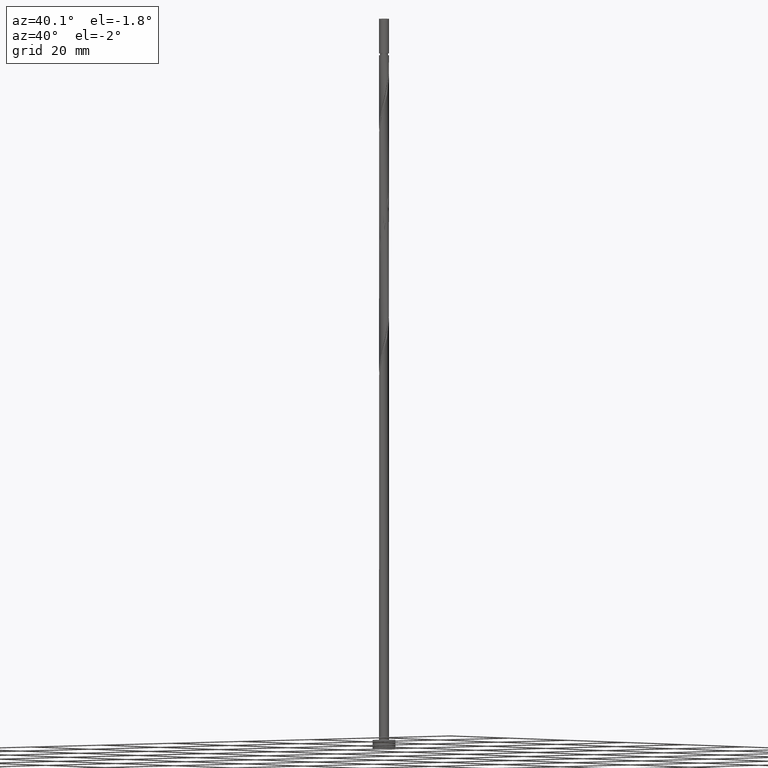
[diagram: clean part render]
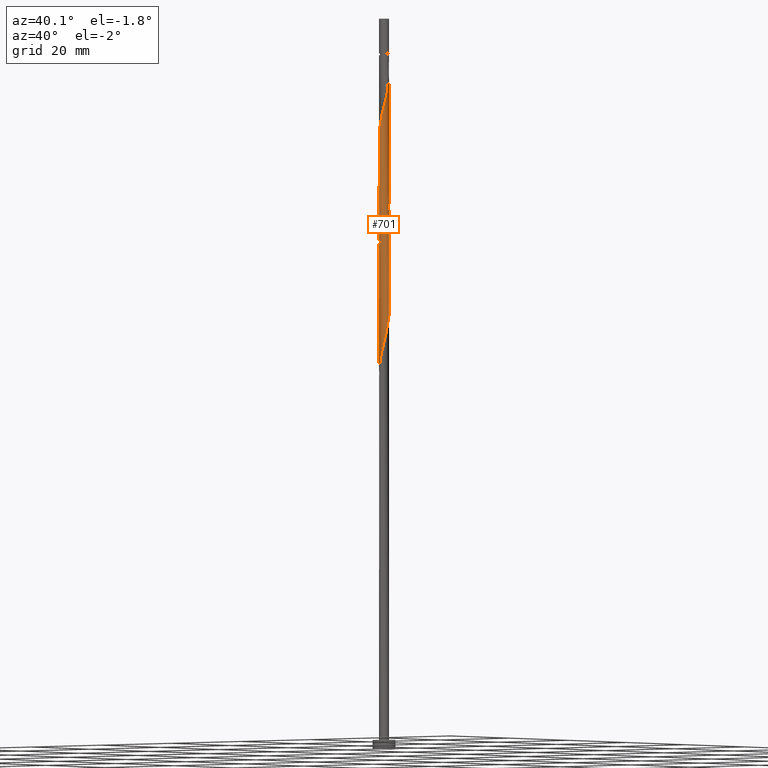
[diagram: same view with one face highlighted and labeled with its STEP entity id]
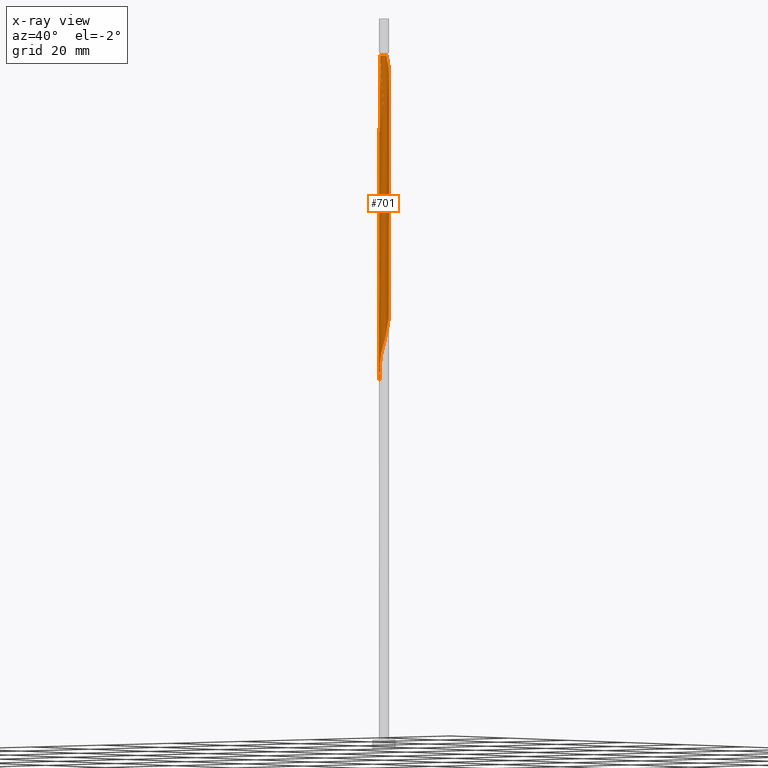
[diagram: x-ray of the same camera — body ghosted, the highlighted face saturated]
A machine part, auxiliary view. The second image highlights one B-rep face of the part: STEP entity #701.
The next image is the same camera in x-ray: the body ghosted, the highlighted face saturated — about 0% of this face is hidden behind the body in this view.
In plain terms, the highlighted cylindrical surface (bore or boss wall) has radius 1.1 mm, axis along (-0, -0, -1).
Its self-contained STEP definition (entity closure, byte-faithful):
#20 = CARTESIAN_POINT ( 'NONE',  ( -0.9826650609611464748, 0.5190209411318559285, 130.7933270120532825 ) ) ;
#30 = DIRECTION ( 'NONE',  ( -0.000000000000000000, -0.000000000000000000, -1.000000000000000000 ) ) ;
#35 = EDGE_CURVE ( 'NONE', #1423, #1343, #1280, .T. ) ;
#45 = CARTESIAN_POINT ( 'NONE',  ( -1.100000000000000089, 0.000000000000000000, 160.0000000000000000 ) ) ;
#60 = CARTESIAN_POINT ( 'NONE',  ( 0.2512589077020582207, -1.082535135996767428, 87.15696337568965646 ) ) ;
#61 = CARTESIAN_POINT ( 'NONE',  ( 1.035875189584575473, 0.3700845735816656323, 145.9448421635684667 ) ) ;
#63 = CARTESIAN_POINT ( 'NONE',  ( 1.100000000000001865, 1.435854787535623950E-15, 119.5215693701420747 ) ) ;
#66 = CARTESIAN_POINT ( 'NONE',  ( 0.8896500927852526441, -0.6469333137249889676, 90.18726640599271605 ) ) ;
#67 = CARTESIAN_POINT ( 'NONE',  ( -0.8896500927852526441, -0.6469333137249891896, 133.8236300423563705 ) ) ;
#71 = CARTESIAN_POINT ( 'NONE',  ( -1.071516489199091815, -0.2487014543070792394, 107.1569633756896707 ) ) ;
#79 = CARTESIAN_POINT ( 'NONE',  ( -0.9580452458864876508, -0.5405083781351617267, 108.3690845878108604 ) ) ;
#86 = CARTESIAN_POINT ( 'NONE',  ( 0.8803318733882242730, -0.6782544891587160008, 141.7024179211442458 ) ) ;
#88 = CARTESIAN_POINT ( 'NONE',  ( 1.035875189584575917, -0.3700845735816660209, 91.39938761811390577 ) ) ;
#92 = CARTESIAN_POINT ( 'NONE',  ( 0.9580452458864876508, -0.5405083781351621708, 142.3084785272048123 ) ) ;
#107 = EDGE_CURVE ( 'NONE', #591, #402, #452, .T. ) ;
#123 = EDGE_LOOP ( 'NONE', ( #1178, #1403, #1158, #1291, #810, #1100, #1234, #1437 ) ) ;
#132 = CARTESIAN_POINT ( 'NONE',  ( 0.6535858755450255630, 0.8987985662289482702, 123.5205997393260162 ) ) ;
#143 = CARTESIAN_POINT ( 'NONE',  ( -1.100000000000002087, -0.1259818201236328483, 80.00752932311335996 ) ) ;
#144 = CARTESIAN_POINT ( 'NONE',  ( -0.8896500927852526441, 0.6469333137249889676, 130.1872664059927160 ) ) ;
#147 = CARTESIAN_POINT ( 'NONE',  ( 1.089085318208004693, -0.2211482060314762799, 118.6721148908411720 ) ) ;
#151 = CARTESIAN_POINT ( 'NONE',  ( 0.06390423523687577267, 1.109472671175797842, 125.9448421635684667 ) ) ;
#169 = CYLINDRICAL_SURFACE ( 'NONE', #1401, 1.100000000000000089 ) ;
#171 = CARTESIAN_POINT ( 'NONE',  ( 0.7966351246093590355, -0.7748456863181223397, 89.58120579993210697 ) ) ;
#172 = CARTESIAN_POINT ( 'NONE',  ( 1.089085318208004471, 0.2211482060314758358, 145.3387815575078719 ) ) ;
#179 = CARTESIAN_POINT ( 'NONE',  ( -0.6535858755450254520, -0.8987985662289483813, 83.52059973932603043 ) ) ;
#180 = CARTESIAN_POINT ( 'NONE',  ( 0.6713508364212954493, 0.8713713642508748025, 148.3690845878108746 ) ) ;
#182 = CARTESIAN_POINT ( 'NONE',  ( 1.071516489199092037, 0.2487014543070789896, 93.82363004235635628 ) ) ;
#188 = CARTESIAN_POINT ( 'NONE',  ( -0.09367733623259114073, -1.096003903586282746, 137.4599936787199397 ) ) ;
#190 = CARTESIAN_POINT ( 'NONE',  ( -0.3738902370900387129, -1.046527328824204961, 111.3993876181138631 ) ) ;
#199 = CARTESIAN_POINT ( 'NONE',  ( -0.5137380563175319992, -0.9726629475265765601, 110.7933270120533109 ) ) ;
#200 = EDGE_CURVE ( 'NONE', #547, #402, #704, .T. ) ;
#209 = VERTEX_POINT ( 'NONE', #484 ) ;
#223 = LINE ( 'NONE', #1407, #1375 ) ;
#230 = CARTESIAN_POINT ( 'NONE',  ( -1.100000000000001643, 1.398462735776883580E-15, 79.52156937014208893 ) ) ;
#250 = CARTESIAN_POINT ( 'NONE',  ( -0.7966351246093584804, 0.7748456863181226728, 129.5812057999320643 ) ) ;
#257 = CARTESIAN_POINT ( 'NONE',  ( 0.9580452458864876508, 0.5405083781351621708, 121.7024179211442316 ) ) ;
#266 = CARTESIAN_POINT ( 'NONE',  ( -0.3986627279676452917, 1.025216089090197569, 127.7630239817502940 ) ) ;
#276 = CARTESIAN_POINT ( 'NONE',  ( -0.3738902370900387129, -1.046527328824204961, 84.73272095144724858 ) ) ;
#277 = CARTESIAN_POINT ( 'NONE',  ( 0.7669588744666246960, 0.7885265276938322465, 122.9145391332654356 ) ) ;
#308 = CARTESIAN_POINT ( 'NONE',  ( 0.9826650609611466969, 0.5190209411318552624, 146.5509027696290048 ) ) ;
#310 = CARTESIAN_POINT ( 'NONE',  ( 0.6535858755450255630, 0.8987985662289482702, 96.85393307265935903 ) ) ;
#318 = CARTESIAN_POINT ( 'NONE',  ( -0.6713508364212955604, -0.8713713642508745805, 135.0357512544775886 ) ) ;
#321 = CARTESIAN_POINT ( 'NONE',  ( -0.7669588744666252511, -0.7885265276938319134, 109.5812057999321070 ) ) ;
#328 = CARTESIAN_POINT ( 'NONE',  ( 0.9580452458864876508, 0.5405083781351621708, 95.03575125447753180 ) ) ;
#336 = CARTESIAN_POINT ( 'NONE',  ( 0.8803318733882239400, 0.6782544891587160008, 95.64181186053814088 ) ) ;
#340 = DIRECTION ( 'NONE',  ( -0.000000000000000000, -0.000000000000000000, -1.000000000000000000 ) ) ;
#372 = AXIS2_PLACEMENT_3D ( 'NONE', #624, #30, #516 ) ;
#382 = CARTESIAN_POINT ( 'NONE',  ( -0.09367733623259116849, 1.096003903586282524, 126.5509027696290474 ) ) ;
#393 = VERTEX_POINT ( 'NONE', #230 ) ;
#400 = CARTESIAN_POINT ( 'NONE',  ( -1.071516489199091815, -0.2487014543070792394, 80.49029670902298506 ) ) ;
#402 = VERTEX_POINT ( 'NONE', #713 ) ;
#403 = CARTESIAN_POINT ( 'NONE',  ( 0.7966351246093590355, -0.7748456863181223397, 116.2478724665987500 ) ) ;
#407 = CARTESIAN_POINT ( 'NONE',  ( -1.099999999999993427, 0.000000000000000000, 152.0054482241745291 ) ) ;
#435 = CARTESIAN_POINT ( 'NONE',  ( -1.089085318208004471, -0.2211482060314759746, 132.0054482241745291 ) ) ;
#437 = CARTESIAN_POINT ( 'NONE',  ( -1.089085318208004693, 0.2211482060314761411, 105.3387815575078719 ) ) ;
#444 = CARTESIAN_POINT ( 'NONE',  ( -0.3986627279676452917, 1.025216089090197569, 101.0963573150836083 ) ) ;
#450 = CARTESIAN_POINT ( 'NONE',  ( 0.2188972361634575203, 1.078000000000001402, 98.67211489084120046 ) ) ;
#452 = CIRCLE ( 'NONE', #372, 1.099999999999993427 ) ;
#484 = CARTESIAN_POINT ( 'NONE',  ( 1.100000000000000089, 1.347111479062088503E-16, 152.0054482241745291 ) ) ;
#492 = EDGE_CURVE ( 'NONE', #547, #393, #223, .T. ) ;
#497 = CARTESIAN_POINT ( 'NONE',  ( -1.098179839110718481, 0.06325378226446283503, 132.6115088302351523 ) ) ;
#505 = CARTESIAN_POINT ( 'NONE',  ( 0.8803318733882239400, 0.6782544891587160008, 122.3084785272048407 ) ) ;
#516 = DIRECTION ( 'NONE',  ( -1.000000000000000000, 0.000000000000000000, 0.000000000000000000 ) ) ;
#537 = CARTESIAN_POINT ( 'NONE',  ( 0.2188972361634575203, 1.078000000000001402, 125.3387815575078292 ) ) ;
#544 = CARTESIAN_POINT ( 'NONE',  ( -0.2188972361634573816, -1.078000000000001402, 85.33878155750787187 ) ) ;
#545 = CARTESIAN_POINT ( 'NONE',  ( 0.5137380563175318882, -0.9726629475265768932, 139.8842361029624044 ) ) ;
#547 = VERTEX_POINT ( 'NONE', #1064 ) ;
#554 = CARTESIAN_POINT ( 'NONE',  ( 0.6713508364212955604, -0.8713713642508748025, 88.97514519387149790 ) ) ;
#555 = CARTESIAN_POINT ( 'NONE',  ( 0.2512589077020579986, 1.082535135996767428, 150.1872664059927160 ) ) ;
#557 = CARTESIAN_POINT ( 'NONE',  ( -0.09367733623259116849, 1.096003903586282524, 99.88423610296240440 ) ) ;
#565 = CARTESIAN_POINT ( 'NONE',  ( -1.098179839110718481, 0.06325378226446283503, 105.9448421635684809 ) ) ;
#569 = CARTESIAN_POINT ( 'NONE',  ( -0.06390423523687606411, -1.109472671175797842, 112.6115088302350813 ) ) ;
#575 = CARTESIAN_POINT ( 'NONE',  ( 0.3738902370900385463, -1.046527328824204961, 139.2781754969017811 ) ) ;
#591 = VERTEX_POINT ( 'NONE', #407 ) ;
#609 = CARTESIAN_POINT ( 'NONE',  ( 1.035758618384751806, 0.4027622671116073971, 121.0963573150836083 ) ) ;
#624 = CARTESIAN_POINT ( 'NONE',  ( 0.000000000000000000, 0.000000000000000000, 152.0054482241745291 ) ) ;
#628 = VECTOR ( 'NONE', #637, 1000.000000000000000 ) ;
#637 = DIRECTION ( 'NONE',  ( -0.000000000000000000, -0.000000000000000000, -1.000000000000000000 ) ) ;
#651 = CARTESIAN_POINT ( 'NONE',  ( 1.071516489199091815, -0.2487014543070792394, 143.5205997393260304 ) ) ;
#661 = CARTESIAN_POINT ( 'NONE',  ( 0.09367733623259082154, -1.096003903586282524, 86.55090276962904738 ) ) ;
#663 = CARTESIAN_POINT ( 'NONE',  ( 0.5460665482332321963, 0.9678970421836270432, 148.9751451938714979 ) ) ;
#668 = CARTESIAN_POINT ( 'NONE',  ( 0.3986627279676452917, -1.025216089090197569, 114.4296906484169511 ) ) ;
#676 = CARTESIAN_POINT ( 'NONE',  ( 0.6713508364212955604, -0.8713713642508748025, 115.6418118605381551 ) ) ;
#680 = CARTESIAN_POINT ( 'NONE',  ( -1.035875189584575473, -0.3700845735816658544, 132.6115088302351808 ) ) ;
#683 = CARTESIAN_POINT ( 'NONE',  ( -0.9826650609611464748, 0.5190209411318559285, 104.1266603453866253 ) ) ;
#690 = CARTESIAN_POINT ( 'NONE',  ( -1.100000000000001643, -0.03165307917620744510, 131.2780917495918800 ) ) ;
#701 = ADVANCED_FACE ( 'NONE', ( #1393 ), #169, .T. ) ;
#704 =( BOUNDED_CURVE ( )  B_SPLINE_CURVE ( 2, ( #1242, #690, #1387, #435, #680, #767, #67, #1379, #318, #794, #1121, #1263, #188, #1152, #1369, #575, #545, #1031, #1144, #86, #92, #787, #651, #881, #1361, #172, #61, #308, #779, #1253, #180, #663, #1127, #555, #1010, #1499, #888 ),
 .UNSPECIFIED., .F., .T. ) 
 B_SPLINE_CURVE_WITH_KNOTS ( ( 3, 2, 2, 2, 2, 2, 2, 2, 2, 2, 2, 2, 2, 2, 2, 2, 2, 2, 3 ),
 ( 0.5545252162417515507, 0.5568181818181818787, 0.5681818181818181213, 0.5795454545454545858, 0.5909090909090908283, 0.6022727272727272929, 0.6136363636363636465, 0.6250000000000000000, 0.6363636363636364646, 0.6477272727272727071, 0.6590909090909091717, 0.6704545454545455252, 0.6818181818181819898, 0.6931818181818182323, 0.7045454545454546968, 0.7159090909090909394, 0.7272727272727274039, 0.7386363636363637575, 0.7500000000000001110 ),
 .UNSPECIFIED. ) 
 CURVE ( )  GEOMETRIC_REPRESENTATION_ITEM ( )  RATIONAL_B_SPLINE_CURVE ( ( 0.9061101570135798866, 0.9072237824201621059, 0.9090909090909394807, 0.8998376744372417191, 0.9090909090909394807, 0.8998376744372417191, 0.9090909090909394807, 0.8998376744372417191, 0.9090909090909394807, 0.8998376744372417191, 0.9090909090909394807, 0.8998376744372417191, 0.9090909090909394807, 0.8998376744372417191, 0.9090909090909394807, 0.8998376744372417191, 0.9090909090909394807, 0.8998376744372417191, 0.9090909090909394807, 0.8998376744372417191, 0.9090909090909394807, 0.8998376744372417191, 0.9090909090909394807, 0.8998376744372417191, 0.9090909090909394807, 0.8998376744372417191, 0.9090909090909394807, 0.8998376744372417191, 0.9090909090909394807, 0.8998376744372417191, 0.9090909090909394807, 0.8998376744372417191, 0.9090909090909394807, 0.8998376744372417191, 0.9090909090909394807, 0.8998376744372416081, 0.9090909090909395918 ) ) 
 REPRESENTATION_ITEM ( '' )  );
#713 = CARTESIAN_POINT ( 'NONE',  ( -0.2188972361634685115, 1.078000000000313596, 152.0054482241743870 ) ) ;
#726 = CARTESIAN_POINT ( 'NONE',  ( 0.5137380563175322212, 0.9726629475265765601, 124.1266603453866395 ) ) ;
#729 = CARTESIAN_POINT ( 'NONE',  ( 1.100000000000002087, 0.1259818201236340418, 120.0075293231133884 ) ) ;
#739 = CARTESIAN_POINT ( 'NONE',  ( -1.100000000000001643, 1.398462735776883580E-15, 79.52156937014208893 ) ) ;
#759 = CARTESIAN_POINT ( 'NONE',  ( -1.100000000000002087, 0.03165307917620340666, 132.7328046987572350 ) ) ;
#767 = CARTESIAN_POINT ( 'NONE',  ( -0.9826650609611464748, -0.5190209411318557065, 133.2175694362957188 ) ) ;
#779 = CARTESIAN_POINT ( 'NONE',  ( 0.8896500927852530882, 0.6469333137249887455, 147.1569633756897133 ) ) ;
#780 = CARTESIAN_POINT ( 'NONE',  ( -0.6535858755450254520, -0.8987985662289483813, 110.1872664059927018 ) ) ;
#787 = CARTESIAN_POINT ( 'NONE',  ( 1.035758618384751584, -0.4027622671116077857, 142.9145391332654071 ) ) ;
#788 = CARTESIAN_POINT ( 'NONE',  ( 0.5460665482332321963, -0.9678970421836271543, 115.0357512544775318 ) ) ;
#794 = CARTESIAN_POINT ( 'NONE',  ( -0.5460665482332326404, -0.9678970421836268212, 135.6418118605381551 ) ) ;
#796 = CARTESIAN_POINT ( 'NONE',  ( 1.035758618384751806, 0.4027622671116073971, 94.42969064841693694 ) ) ;
#810 = ORIENTED_EDGE ( 'NONE', *, *, #1057, .F. ) ;
#835 = CARTESIAN_POINT ( 'NONE',  ( -1.100000000000001643, -1.383505915073387403E-16, 132.8549027034754317 ) ) ;
#846 = LINE ( 'NONE', #45, #990 ) ;
#869 = DIRECTION ( 'NONE',  ( -0.000000000000000000, -0.000000000000000000, -1.000000000000000000 ) ) ;
#880 = CARTESIAN_POINT ( 'NONE',  ( 0.000000000000000000, 0.000000000000000000, 160.0000000000000000 ) ) ;
#881 = CARTESIAN_POINT ( 'NONE',  ( 1.107274360013432490, -0.09464064150255065144, 144.1266603453866253 ) ) ;
#884 = CARTESIAN_POINT ( 'NONE',  ( 0.2512589077020582207, -1.082535135996767428, 113.8236300423563421 ) ) ;
#887 = CARTESIAN_POINT ( 'NONE',  ( 0.3986627279676452917, -1.025216089090197569, 87.76302398175030817 ) ) ;
#888 = CARTESIAN_POINT ( 'NONE',  ( -0.2188972361634685115, 1.078000000000313596, 152.0054482241743870 ) ) ;
#891 = CARTESIAN_POINT ( 'NONE',  ( 1.089085318208004693, -0.2211482060314762799, 92.00544822417450064 ) ) ;
#897 = CARTESIAN_POINT ( 'NONE',  ( -0.2512589077020579986, 1.082535135996767428, 100.4902967090229851 ) ) ;
#902 = EDGE_CURVE ( 'NONE', #591, #1423, #846, .T. ) ;
#904 = CARTESIAN_POINT ( 'NONE',  ( -1.035875189584575917, 0.3700845735816657989, 104.7327209514472486 ) ) ;
#949 = CARTESIAN_POINT ( 'NONE',  ( -0.2512589077020579986, 1.082535135996767428, 127.1569633756896565 ) ) ;
#960 = CARTESIAN_POINT ( 'NONE',  ( 1.100000000000001421, -0.03165307917620591160, 119.3994713654238780 ) ) ;
#961 = LINE ( 'NONE', #1075, #628 ) ;
#972 = CARTESIAN_POINT ( 'NONE',  ( 0.9826650609611464748, -0.5190209411318557065, 117.4599936787199539 ) ) ;
#981 = CARTESIAN_POINT ( 'NONE',  ( -1.035758618384751584, -0.4027622671116081188, 81.09635731508359413 ) ) ;
#990 = VECTOR ( 'NONE', #1329, 1000.000000000000000 ) ;
#1000 =( BOUNDED_CURVE ( )  B_SPLINE_CURVE ( 2, ( #63, #960, #1214, #147, #1090, #972, #1462, #403, #676, #788, #668, #884, #1255, #569, #1019, #190, #199, #780, #321, #1138, #79, #1370, #71, #1510, #565, #437, #904, #683, #1025, #1517, #1264, #1130, #444, #897, #557, #1012, #450, #1396, #1389, #310, #1272, #336, #328, #796, #182, #1146, #1501, #891, #88, #1380, #66, #171, #554, #1126, #887, #60, #661, #1498, #544, #276, #1360, #179, #1368, #1008, #1377, #981, #400, #143, #739 ),
 .UNSPECIFIED., .F., .T. ) 
 B_SPLINE_CURVE_WITH_KNOTS ( ( 3, 2, 2, 2, 2, 2, 2, 2, 2, 2, 2, 2, 2, 2, 2, 2, 2, 2, 2, 2, 2, 2, 2, 2, 2, 2, 2, 2, 2, 2, 2, 2, 2, 2, 3 ),
 ( 0.5545252162417513286, 0.5568181818181817677, 0.5681818181818182323, 0.5795454545454545858, 0.5909090909090909394, 0.6022727272727272929, 0.6136363636363636465, 0.6250000000000000000, 0.6363636363636363535, 0.6477272727272727071, 0.6590909090909090606, 0.6704545454545454142, 0.6818181818181817677, 0.6931818181818182323, 0.7045454545454545858, 0.7159090909090909394, 0.7272727272727272929, 0.7386363636363636465, 0.7500000000000000000, 0.7613636363636363535, 0.7727272727272727071, 0.7840909090909090606, 0.7954545454545454142, 0.8068181818181817677, 0.8181818181818182323, 0.8295454545454545858, 0.8409090909090909394, 0.8522727272727272929, 0.8636363636363636465, 0.8750000000000000000, 0.8863636363636363535, 0.8977272727272727071, 0.9090909090909090606, 0.9204545454545454142, 0.9295252162417514397 ),
 .UNSPECIFIED. ) 
 CURVE ( )  GEOMETRIC_REPRESENTATION_ITEM ( )  RATIONAL_B_SPLINE_CURVE ( ( 0.9061101570135806638, 0.9072237824201627721, 0.9090909090909403689, 0.8998376744372424962, 0.9090909090909403689, 0.8998376744372424962, 0.9090909090909403689, 0.8998376744372424962, 0.9090909090909403689, 0.8998376744372424962, 0.9090909090909403689, 0.8998376744372424962, 0.9090909090909403689, 0.8998376744372424962, 0.9090909090909403689, 0.8998376744372424962, 0.9090909090909403689, 0.8998376744372424962, 0.9090909090909403689, 0.8998376744372424962, 0.9090909090909403689, 0.8998376744372424962, 0.9090909090909403689, 0.8998376744372424962, 0.9090909090909403689, 0.8998376744372424962, 0.9090909090909403689, 0.8998376744372424962, 0.9090909090909403689, 0.8998376744372424962, 0.9090909090909403689, 0.8998376744372424962, 0.9090909090909403689, 0.8998376744372424962, 0.9090909090909403689, 0.8998376744372424962, 0.9090909090909403689, 0.8998376744372424962, 0.9090909090909403689, 0.8998376744372424962, 0.9090909090909403689, 0.8998376744372424962, 0.9090909090909403689, 0.8998376744372424962, 0.9090909090909403689, 0.8998376744372424962, 0.9090909090909403689, 0.8998376744372424962, 0.9090909090909403689, 0.8998376744372424962, 0.9090909090909403689, 0.8998376744372424962, 0.9090909090909403689, 0.8998376744372424962, 0.9090909090909403689, 0.8998376744372424962, 0.9090909090909403689, 0.8998376744372424962, 0.9090909090909403689, 0.8998376744372424962, 0.9090909090909403689, 0.8998376744372424962, 0.9090909090909403689, 0.8998376744372424962, 0.9090909090909403689, 0.8998376744372424962, 0.9090909090909403689, 0.9017048011080199821, 0.9061101570135807748 ) ) 
 REPRESENTATION_ITEM ( '' )  );
#1008 = CARTESIAN_POINT ( 'NONE',  ( -0.8803318733882242730, -0.6782544891587156677, 82.30847852720481228 ) ) ;
#1010 = CARTESIAN_POINT ( 'NONE',  ( 0.09367733623259123787, 1.096003903586282746, 150.7933270120533678 ) ) ;
#1012 = CARTESIAN_POINT ( 'NONE',  ( 0.06390423523687577267, 1.109472671175797842, 99.27817549690179533 ) ) ;
#1019 = CARTESIAN_POINT ( 'NONE',  ( -0.2188972361634573816, -1.078000000000001402, 112.0054482241745006 ) ) ;
#1025 = CARTESIAN_POINT ( 'NONE',  ( -0.8896500927852526441, 0.6469333137249889676, 103.5205997393260304 ) ) ;
#1031 = CARTESIAN_POINT ( 'NONE',  ( 0.6535858755450257851, -0.8987985662289482702, 140.4902967090230561 ) ) ;
#1057 = EDGE_CURVE ( 'NONE', #1343, #393, #1000, .T. ) ;
#1064 = CARTESIAN_POINT ( 'NONE',  ( -1.100000000000001643, 2.542659519594335844E-16, 131.1559937448736548 ) ) ;
#1071 = CARTESIAN_POINT ( 'NONE',  ( -1.035875189584575917, 0.3700845735816657989, 131.3993876181139342 ) ) ;
#1075 = CARTESIAN_POINT ( 'NONE',  ( 1.100000000000000089, 1.347111479062088503E-16, 160.0000000000000000 ) ) ;
#1078 = CARTESIAN_POINT ( 'NONE',  ( -1.089085318208004693, 0.2211482060314761411, 132.0054482241745006 ) ) ;
#1090 = CARTESIAN_POINT ( 'NONE',  ( 1.035875189584575917, -0.3700845735816660209, 118.0660542847805914 ) ) ;
#1100 = ORIENTED_EDGE ( 'NONE', *, *, #1366, .F. ) ;
#1108 = CARTESIAN_POINT ( 'NONE',  ( -0.6713508364212955604, 0.8713713642508748025, 128.9751451938714979 ) ) ;
#1121 = CARTESIAN_POINT ( 'NONE',  ( -0.3986627279676455138, -1.025216089090197347, 136.2478724665988352 ) ) ;
#1126 = CARTESIAN_POINT ( 'NONE',  ( 0.5460665482332321963, -0.9678970421836271543, 88.36908458781090303 ) ) ;
#1127 = CARTESIAN_POINT ( 'NONE',  ( 0.3986627279676449587, 1.025216089090197347, 149.5812057999320928 ) ) ;
#1130 = CARTESIAN_POINT ( 'NONE',  ( -0.5460665482332324183, 0.9678970421836269322, 101.7024179211442316 ) ) ;
#1138 = CARTESIAN_POINT ( 'NONE',  ( -0.8803318733882242730, -0.6782544891587156677, 108.9751451938714837 ) ) ;
#1144 = CARTESIAN_POINT ( 'NONE',  ( 0.7669588744666248070, -0.7885265276938320245, 141.0963573150836510 ) ) ;
#1146 = CARTESIAN_POINT ( 'NONE',  ( 1.107274360013432268, 0.09464064150255027674, 93.21756943629571879 ) ) ;
#1152 = CARTESIAN_POINT ( 'NONE',  ( 0.06390423523687575880, -1.109472671175797842, 138.0660542847805914 ) ) ;
#1158 = ORIENTED_EDGE ( 'NONE', *, *, #200, .F. ) ;
#1178 = ORIENTED_EDGE ( 'NONE', *, *, #902, .F. ) ;
#1196 = CARTESIAN_POINT ( 'NONE',  ( 1.100000000000001865, 1.435854787535623752E-15, 119.5215693701420747 ) ) ;
#1200 = CARTESIAN_POINT ( 'NONE',  ( 1.100000000000001865, 1.435854787535623950E-15, 119.5215693701420747 ) ) ;
#1214 = CARTESIAN_POINT ( 'NONE',  ( 1.098179839110718481, -0.06325378226446300156, 119.2781754969017811 ) ) ;
#1234 = ORIENTED_EDGE ( 'NONE', *, *, #1366, .T. ) ;
#1242 = CARTESIAN_POINT ( 'NONE',  ( -1.100000000000001643, 2.542659519594335844E-16, 131.1559937448736548 ) ) ;
#1253 = CARTESIAN_POINT ( 'NONE',  ( 0.7966351246093590355, 0.7748456863181217846, 147.7630239817502229 ) ) ;
#1255 = CARTESIAN_POINT ( 'NONE',  ( 0.09367733623259082154, -1.096003903586282524, 113.2175694362957472 ) ) ;
#1263 = CARTESIAN_POINT ( 'NONE',  ( -0.2512589077020578876, -1.082535135996767428, 136.8539330726593732 ) ) ;
#1264 = CARTESIAN_POINT ( 'NONE',  ( -0.6713508364212955604, 0.8713713642508748025, 102.3084785272048549 ) ) ;
#1272 = CARTESIAN_POINT ( 'NONE',  ( 0.7669588744666246960, 0.7885265276938322465, 96.24787246659877837 ) ) ;
#1280 =( BOUNDED_CURVE ( )  B_SPLINE_CURVE ( 2, ( #835, #759, #497, #1078, #1071, #20, #144, #250, #1108, #1480, #266, #949, #382, #151, #537, #1444, #726, #132, #277, #505, #257, #609, #1320, #729, #1200 ),
 .UNSPECIFIED., .F., .T. ) 
 B_SPLINE_CURVE_WITH_KNOTS ( ( 3, 2, 2, 2, 2, 2, 2, 2, 2, 2, 2, 2, 3 ),
 ( 0.4295252162417512176, 0.4318181818181818232, 0.4431818181818181768, 0.4545454545454545303, 0.4659090909090908839, 0.4772727272727272929, 0.4886363636363636465, 0.5000000000000000000, 0.5113636363636363535, 0.5227272727272727071, 0.5340909090909090606, 0.5454545454545454142, 0.5545252162417513286 ),
 .UNSPECIFIED. ) 
 CURVE ( )  GEOMETRIC_REPRESENTATION_ITEM ( )  RATIONAL_B_SPLINE_CURVE ( ( 0.9061101570135804417, 0.9072237824201626610, 0.9090909090909403689, 0.8998376744372424962, 0.9090909090909403689, 0.8998376744372424962, 0.9090909090909403689, 0.8998376744372424962, 0.9090909090909403689, 0.8998376744372424962, 0.9090909090909403689, 0.8998376744372424962, 0.9090909090909403689, 0.8998376744372424962, 0.9090909090909403689, 0.8998376744372424962, 0.9090909090909403689, 0.8998376744372424962, 0.9090909090909403689, 0.8998376744372424962, 0.9090909090909403689, 0.8998376744372424962, 0.9090909090909403689, 0.9017048011080199821, 0.9061101570135806638 ) ) 
 REPRESENTATION_ITEM ( '' )  );
#1291 = ORIENTED_EDGE ( 'NONE', *, *, #492, .T. ) ;
#1320 = CARTESIAN_POINT ( 'NONE',  ( 1.071516489199092037, 0.2487014543070789896, 120.4902967090229708 ) ) ;
#1329 = DIRECTION ( 'NONE',  ( -0.000000000000000000, -0.000000000000000000, -1.000000000000000000 ) ) ;
#1343 = VERTEX_POINT ( 'NONE', #1196 ) ;
#1360 = CARTESIAN_POINT ( 'NONE',  ( -0.5137380563175319992, -0.9726629475265765601, 84.12666034538663951 ) ) ;
#1361 = CARTESIAN_POINT ( 'NONE',  ( 1.098179839110718259, 0.06325378226446259911, 144.7327209514472770 ) ) ;
#1366 = EDGE_CURVE ( 'NONE', #209, #1343, #961, .T. ) ;
#1367 = DIRECTION ( 'NONE',  ( -1.000000000000000000, 0.000000000000000000, 0.000000000000000000 ) ) ;
#1368 = CARTESIAN_POINT ( 'NONE',  ( -0.7669588744666252511, -0.7885265276938319134, 82.91453913326543557 ) ) ;
#1369 = CARTESIAN_POINT ( 'NONE',  ( 0.2188972361634571040, -1.078000000000001402, 138.6721148908412147 ) ) ;
#1370 = CARTESIAN_POINT ( 'NONE',  ( -1.035758618384751584, -0.4027622671116081188, 107.7630239817502655 ) ) ;
#1375 = VECTOR ( 'NONE', #340, 1000.000000000000000 ) ;
#1377 = CARTESIAN_POINT ( 'NONE',  ( -0.9580452458864876508, -0.5405083781351617267, 81.70241792114423163 ) ) ;
#1379 = CARTESIAN_POINT ( 'NONE',  ( -0.7966351246093585914, -0.7748456863181224508, 134.4296906484169369 ) ) ;
#1380 = CARTESIAN_POINT ( 'NONE',  ( 0.9826650609611464748, -0.5190209411318557065, 90.79332701205331091 ) ) ;
#1387 = CARTESIAN_POINT ( 'NONE',  ( -1.098179839110718259, -0.06325378226446273788, 131.3993876181139342 ) ) ;
#1389 = CARTESIAN_POINT ( 'NONE',  ( 0.5137380563175322212, 0.9726629475265765601, 97.45999367871999652 ) ) ;
#1393 = FACE_OUTER_BOUND ( 'NONE', #123, .T. ) ;
#1396 = CARTESIAN_POINT ( 'NONE',  ( 0.3738902370900388794, 1.046527328824204739, 98.06605428478057718 ) ) ;
#1401 = AXIS2_PLACEMENT_3D ( 'NONE', #880, #869, #1367 ) ;
#1403 = ORIENTED_EDGE ( 'NONE', *, *, #107, .T. ) ;
#1407 = CARTESIAN_POINT ( 'NONE',  ( -1.100000000000000089, 0.000000000000000000, 160.0000000000000000 ) ) ;
#1423 = VERTEX_POINT ( 'NONE', #1449 ) ;
#1437 = ORIENTED_EDGE ( 'NONE', *, *, #35, .F. ) ;
#1444 = CARTESIAN_POINT ( 'NONE',  ( 0.3738902370900388794, 1.046527328824204739, 124.7327209514472628 ) ) ;
#1449 = CARTESIAN_POINT ( 'NONE',  ( -1.100000000000001643, -1.383505915073387403E-16, 132.8549027034754317 ) ) ;
#1462 = CARTESIAN_POINT ( 'NONE',  ( 0.8896500927852526441, -0.6469333137249889676, 116.8539330726593732 ) ) ;
#1480 = CARTESIAN_POINT ( 'NONE',  ( -0.5460665482332324183, 0.9678970421836269322, 128.3690845878108462 ) ) ;
#1498 = CARTESIAN_POINT ( 'NONE',  ( -0.06390423523687606411, -1.109472671175797842, 85.94484216356846673 ) ) ;
#1499 = CARTESIAN_POINT ( 'NONE',  ( -0.06390423523687716045, 1.109472671175798064, 151.3993876181139342 ) ) ;
#1501 = CARTESIAN_POINT ( 'NONE',  ( 1.098179839110718481, -0.06325378226446300156, 92.61150883023512392 ) ) ;
#1510 = CARTESIAN_POINT ( 'NONE',  ( -1.107274360013432268, -0.09464064150255065144, 106.5509027696290616 ) ) ;
#1517 = CARTESIAN_POINT ( 'NONE',  ( -0.7966351246093584804, 0.7748456863181226728, 102.9145391332654071 ) ) ;